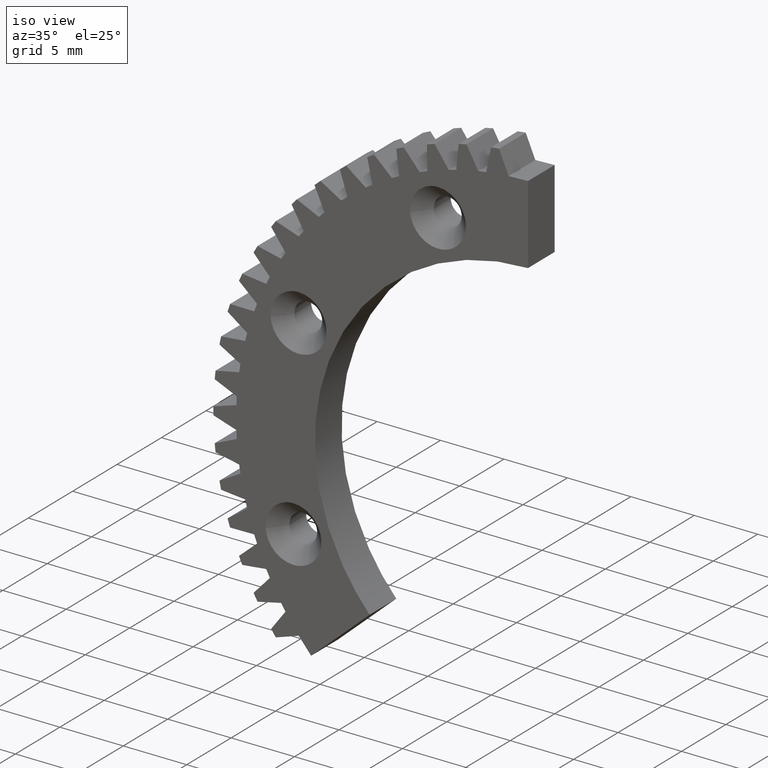
[diagram: clean part render]
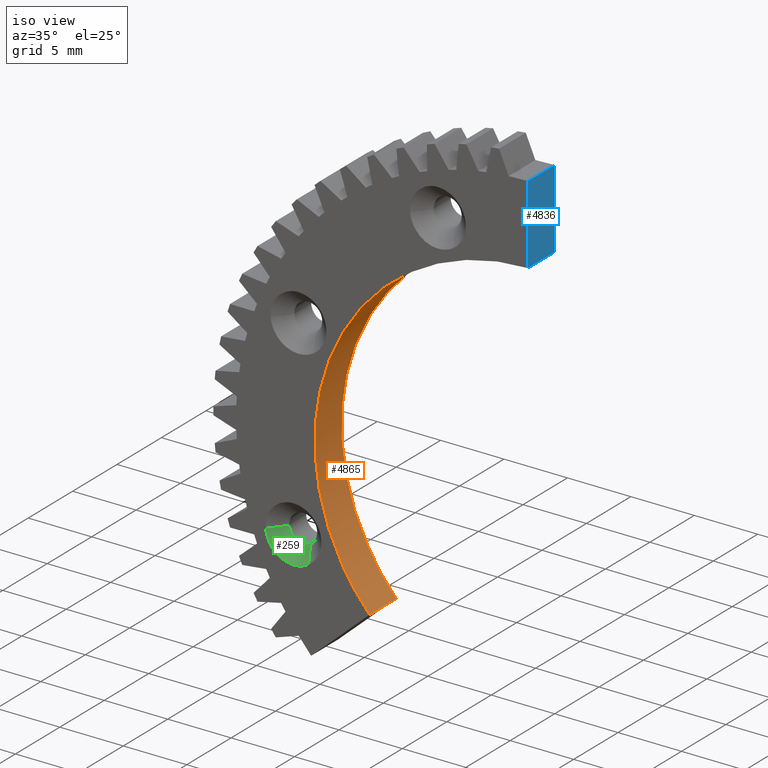
[diagram: same view with three faces highlighted in distinct colors, each labeled with its STEP entity id]
A machine part, iso view with three faces highlighted in distinct colors.
Their STEP definitions:

[orange] entity #4865 — the highlighted face is a freeform B-spline surface patch.
#1083=CARTESIAN_POINT('',(-12.484832521074720,0.0,-31.041392299796801));
#1084=VERTEX_POINT('',#1083);
#2029=CARTESIAN_POINT('',(-0.000000879645893,0.0,-3.0));
#2030=VERTEX_POINT('',#2029);
#2036=CARTESIAN_POINT('',(-0.000000879645893,0.0,-3.0));
#2037=CARTESIAN_POINT('',(-10.910047379083419,0.0,-3.000000571248718));
#2038=CARTESIAN_POINT('',(-15.347562894111640,0.0,-12.966824070928711));
#2039=CARTESIAN_POINT('',(-19.785078409139871,0.0,-22.933647570608706));
#2040=CARTESIAN_POINT('',(-12.484832521074710,0.0,-31.041392299796790));
#2048=(BOUNDED_CURVE()B_SPLINE_CURVE(2,(#2036,#2037,#2038,#2039,#2040),.UNSPECIFIED.,.F.,.U.)B_SPLINE_CURVE_WITH_KNOTS((3,2,3),(0.0,0.500000000000000,1.0),.UNSPECIFIED.)CURVE()GEOMETRIC_REPRESENTATION_ITEM()RATIONAL_B_SPLINE_CURVE((1.0,0.838670577451168,1.0,0.838670577451168,1.0))REPRESENTATION_ITEM(''));
#2049=EDGE_CURVE('',#2030,#1084,#2048,.T.);
#2079=CARTESIAN_POINT('',(-12.484832521074720,-3.0,-31.041392299796801));
#2080=VERTEX_POINT('',#2079);
#2086=CARTESIAN_POINT('',(-0.000000879645893,-3.0,-3.0));
#2087=VERTEX_POINT('',#2086);
#2088=CARTESIAN_POINT('',(-0.000000879645893,-3.0,-3.0));
#2089=CARTESIAN_POINT('',(-10.910047379083419,-3.000000000000000,-3.000000571248718));
#2090=CARTESIAN_POINT('',(-15.347562894111640,-3.0,-12.966824070928711));
#2091=CARTESIAN_POINT('',(-19.785078409139871,-3.000000000000000,-22.933647570608706));
#2092=CARTESIAN_POINT('',(-12.484832521074710,-3.0,-31.041392299796790));
#2100=(BOUNDED_CURVE()B_SPLINE_CURVE(2,(#2088,#2089,#2090,#2091,#2092),.UNSPECIFIED.,.F.,.U.)B_SPLINE_CURVE_WITH_KNOTS((3,2,3),(0.0,0.500000000000000,1.0),.UNSPECIFIED.)CURVE()GEOMETRIC_REPRESENTATION_ITEM()RATIONAL_B_SPLINE_CURVE((1.0,0.838670577451168,1.0,0.838670577451168,1.0))REPRESENTATION_ITEM(''));
#2101=EDGE_CURVE('',#2087,#2080,#2100,.T.);
#4829=CARTESIAN_POINT('',(-0.000000879645893,-3.0,-3.0));
#4830=CARTESIAN_POINT('',(-0.000000879645893,0.0,-3.0));
#4831=QUASI_UNIFORM_CURVE('',1,(#4829,#4830),.UNSPECIFIED.,.F.,.U.);
#4832=EDGE_CURVE('',#2087,#2030,#4831,.T.);
#4837=CARTESIAN_POINT('',(0.439772998510128,-3.075000000000001,-3.005756947743453));
#4838=CARTESIAN_POINT('',(0.439772998510128,0.076875000000000,-3.005756947743453));
#4839=CARTESIAN_POINT('',(-11.102589778152275,-3.075000000000000,-2.703509339760310));
#4840=CARTESIAN_POINT('',(-11.102589778152275,0.076875000000000,-2.703509339760310));
#4841=CARTESIAN_POINT('',(-15.521175110101440,-3.075000000000001,-13.370917448054330));
#4842=CARTESIAN_POINT('',(-15.521175110101440,0.076875000000000,-13.370917448054330));
#4843=CARTESIAN_POINT('',(-19.939760442050613,-3.075000000000000,-24.038325556348351));
#4844=CARTESIAN_POINT('',(-19.939760442050613,0.076875000000000,-24.038325556348351));
#4845=CARTESIAN_POINT('',(-11.564356395991330,-3.075000000000001,-31.986287505795971));
#4846=CARTESIAN_POINT('',(-11.564356395991330,0.076875000000000,-31.986287505795971));
#4854=(BOUNDED_SURFACE()B_SPLINE_SURFACE(1,2,((#4837,#4839,#4841,#4843,#4845),(#4838,#4840,#4842,#4844,#4846)),.UNSPECIFIED.,.F.,.F.,.U.)B_SPLINE_SURFACE_WITH_KNOTS((2,2),(3,2,3),(0.0,3.151875000000001),(0.0,20.866153390669229,41.732306781338451),.UNSPECIFIED.)GEOMETRIC_REPRESENTATION_ITEM()RATIONAL_B_SPLINE_SURFACE(((1.0,0.824126188622016,1.0,0.824126188622016,1.0),(1.0,0.824126188622016,1.0,0.824126188622016,1.0)))REPRESENTATION_ITEM('')SURFACE());
#4855=ORIENTED_EDGE('',*,*,#2049,.F.);
#4856=ORIENTED_EDGE('',*,*,#4832,.F.);
#4857=ORIENTED_EDGE('',*,*,#2101,.T.);
#4858=CARTESIAN_POINT('',(-12.484832521074720,-3.0,-31.041392299796801));
#4859=CARTESIAN_POINT('',(-12.484832521074720,0.0,-31.041392299796801));
#4860=QUASI_UNIFORM_CURVE('',1,(#4858,#4859),.UNSPECIFIED.,.F.,.U.);
#4861=EDGE_CURVE('',#2080,#1084,#4860,.T.);
#4862=ORIENTED_EDGE('',*,*,#4861,.T.);
#4863=EDGE_LOOP('',(#4855,#4856,#4857,#4862));
#4864=FACE_OUTER_BOUND('',#4863,.T.);
#4865=ADVANCED_FACE('',(#4864),#4854,.F.);

[blue] entity #4836 — the highlighted face is a freeform B-spline surface patch.
#2014=CARTESIAN_POINT('',(0.0,0.0,3.200000999999900));
#2015=VERTEX_POINT('',#2014);
#2029=CARTESIAN_POINT('',(-0.000000879645893,0.0,-3.0));
#2030=VERTEX_POINT('',#2029);
#2031=CARTESIAN_POINT('',(-0.000000879645893,0.0,-3.0));
#2032=CARTESIAN_POINT('',(0.0,0.0,3.200000999999900));
#2033=QUASI_UNIFORM_CURVE('',1,(#2031,#2032),.UNSPECIFIED.,.F.,.U.);
#2034=EDGE_CURVE('',#2030,#2015,#2033,.T.);
#2086=CARTESIAN_POINT('',(-0.000000879645893,-3.0,-3.0));
#2087=VERTEX_POINT('',#2086);
#2103=CARTESIAN_POINT('',(0.0,-3.0,3.200000999999900));
#2104=VERTEX_POINT('',#2103);
#2105=CARTESIAN_POINT('',(-0.000000879645893,-3.0,-3.0));
#2106=CARTESIAN_POINT('',(0.0,-3.0,3.200000999999900));
#2107=QUASI_UNIFORM_CURVE('',1,(#2105,#2106),.UNSPECIFIED.,.F.,.U.);
#2108=EDGE_CURVE('',#2087,#2104,#2107,.T.);
#4813=CARTESIAN_POINT('',(0.0,-3.0,3.200000999999900));
#4814=CARTESIAN_POINT('',(0.0,0.0,3.200000999999900));
#4815=QUASI_UNIFORM_CURVE('',1,(#4813,#4814),.UNSPECIFIED.,.F.,.U.);
#4816=EDGE_CURVE('',#2104,#2015,#4815,.T.);
#4821=CARTESIAN_POINT('',(0.0,-3.149849994185418,-3.309690037933190));
#4822=CARTESIAN_POINT('',(0.0,-3.149849994185418,3.509691204230076));
#4823=CARTESIAN_POINT('',(0.0,0.149850074651688,-3.309690037933190));
#4824=CARTESIAN_POINT('',(0.0,0.149850074651688,3.509691204230076));
#4825=B_SPLINE_SURFACE_WITH_KNOTS('',1,1,((#4821,#4823),(#4822,#4824)),.UNSPECIFIED.,.F.,.F.,.U.,(2,2),(2,2),(0.0,6.819381242163265),(0.0,3.299700068837106),.UNSPECIFIED.);
#4826=ORIENTED_EDGE('',*,*,#2034,.T.);
#4827=ORIENTED_EDGE('',*,*,#4816,.F.);
#4828=ORIENTED_EDGE('',*,*,#2108,.F.);
#4829=CARTESIAN_POINT('',(-0.000000879645893,-3.0,-3.0));
#4830=CARTESIAN_POINT('',(-0.000000879645893,0.0,-3.0));
#4831=QUASI_UNIFORM_CURVE('',1,(#4829,#4830),.UNSPECIFIED.,.F.,.U.);
#4832=EDGE_CURVE('',#2087,#2030,#4831,.T.);
#4833=ORIENTED_EDGE('',*,*,#4832,.T.);
#4834=EDGE_LOOP('',(#4826,#4827,#4828,#4833));
#4835=FACE_OUTER_BOUND('',#4834,.T.);
#4836=ADVANCED_FACE('',(#4835),#4825,.F.);

[green] entity #259 — the highlighted face is a freeform B-spline surface patch.
#68=CARTESIAN_POINT('',(-17.893179883235110,-1.900000000001235,-27.823091977637539));
#69=VERTEX_POINT('',#68);
#85=CARTESIAN_POINT('',(-17.301544010435251,-3.000000000001895,-28.750436031383401));
#86=VERTEX_POINT('',#85);
#87=CARTESIAN_POINT('',(-17.893179883235110,-1.900000000001235,-27.823091977637539));
#88=CARTESIAN_POINT('',(-17.301544010435251,-3.000000000001895,-28.750436031383401));
#89=QUASI_UNIFORM_CURVE('',1,(#87,#88),.UNSPECIFIED.,.F.,.U.);
#90=EDGE_CURVE('',#69,#86,#89,.T.);
#109=CARTESIAN_POINT('',(-20.678033890272040,-3.000000000029468,-27.068357934725690));
#110=VERTEX_POINT('',#109);
#126=CARTESIAN_POINT('',(-19.581424823175240,-1.900000000053336,-26.982052929606841));
#127=VERTEX_POINT('',#126);
#128=CARTESIAN_POINT('',(-19.581424823175240,-1.900000000053336,-26.982052929606841));
#129=CARTESIAN_POINT('',(-20.678033890272040,-3.000000000029468,-27.068357934725690));
#130=QUASI_UNIFORM_CURVE('',1,(#128,#129),.UNSPECIFIED.,.F.,.U.);
#131=EDGE_CURVE('',#127,#110,#130,.T.);
#181=CARTESIAN_POINT('',(-19.554009596476131,-1.872500000000000,-26.979895304067011));
#182=CARTESIAN_POINT('',(-19.469862216308012,-1.872499999999999,-28.049089144495788));
#183=CARTESIAN_POINT('',(-18.400668375879238,-1.872500000000000,-27.964941764327680));
#184=CARTESIAN_POINT('',(-18.133717207232511,-1.872500000000000,-27.943932251716351));
#185=CARTESIAN_POINT('',(-17.907970780076298,-1.872500000000000,-27.799908376305957));
#186=CARTESIAN_POINT('',(-20.706134497604840,-3.028187500000001,-27.070569500260991));
#187=CARTESIAN_POINT('',(-20.531312921242744,-3.028187500000001,-29.291888241818473));
#188=CARTESIAN_POINT('',(-18.309994179685258,-3.028187500000001,-29.117066665456392));
#189=CARTESIAN_POINT('',(-17.755386014567279,-3.028187500000000,-29.073418056242723));
#190=CARTESIAN_POINT('',(-17.286383341225427,-3.028187500000000,-28.774199222777938));
#198=(BOUNDED_SURFACE()B_SPLINE_SURFACE(2,1,((#181,#186),(#182,#187),(#183,#188),(#184,#189),(#185,#190)),.UNSPECIFIED.,.F.,.F.,.U.)B_SPLINE_SURFACE_WITH_KNOTS((3,2,3),(2,2),(0.0,3.691781928040812,4.873152145013872),(0.0,1.0),.UNSPECIFIED.)GEOMETRIC_REPRESENTATION_ITEM()RATIONAL_B_SPLINE_SURFACE(((1.0,1.0),(0.707106781186548,0.707106781186548),(1.0,1.0),(0.906274169979695,0.906274169979695),(0.872532871172386,0.872532871172386)))REPRESENTATION_ITEM('')SURFACE());
#199=CARTESIAN_POINT('',(-18.484815756047350,-1.900000000000000,-27.995747923898900));
#200=VERTEX_POINT('',#199);
#201=CARTESIAN_POINT('',(-17.893179883235113,-1.900000000001236,-27.823091977637542));
#202=CARTESIAN_POINT('',(-18.163804895103453,-1.900000000000000,-27.995747923898897));
#203=CARTESIAN_POINT('',(-18.484815756047350,-1.900000000000000,-27.995747923898900));
#211=(BOUNDED_CURVE()B_SPLINE_CURVE(2,(#201,#202,#203),.UNSPECIFIED.,.F.,.U.)B_SPLINE_CURVE_WITH_KNOTS((3,3),(0.407950112620737,0.500000000000000),.UNSPECIFIED.)CURVE()GEOMETRIC_REPRESENTATION_ITEM()RATIONAL_B_SPLINE_CURVE((0.863729296950716,0.892156848776287,1.0))REPRESENTATION_ITEM(''));
#212=EDGE_CURVE('',#69,#200,#211,.T.);
#213=ORIENTED_EDGE('',*,*,#212,.T.);
#214=CARTESIAN_POINT('',(-18.484815756047350,-1.900000000000000,-27.995747923898900));
#215=CARTESIAN_POINT('',(-19.501645296121477,-1.900000000000000,-27.995747923898904));
#216=CARTESIAN_POINT('',(-19.581424823175237,-1.900000000053336,-26.982052929606834));
#224=(BOUNDED_CURVE()B_SPLINE_CURVE(2,(#214,#215,#216),.UNSPECIFIED.,.F.,.U.)B_SPLINE_CURVE_WITH_KNOTS((3,3),(0.500000000000000,0.736331300506734),.UNSPECIFIED.)CURVE()GEOMETRIC_REPRESENTATION_ITEM()RATIONAL_B_SPLINE_CURVE((1.0,0.723120658752854,0.969723355908793))REPRESENTATION_ITEM(''));
#225=EDGE_CURVE('',#200,#127,#224,.T.);
#226=ORIENTED_EDGE('',*,*,#225,.T.);
#227=ORIENTED_EDGE('',*,*,#131,.T.);
#228=CARTESIAN_POINT('',(-18.484815756047350,-3.0,-29.095747923898902));
#229=VERTEX_POINT('',#228);
#230=CARTESIAN_POINT('',(-18.484815756047350,-3.0,-29.095747923898902));
#231=CARTESIAN_POINT('',(-20.518474837280163,-3.000000000000000,-29.095747923898902));
#232=CARTESIAN_POINT('',(-20.678033890272040,-3.000000000029467,-27.068357934725693));
#240=(BOUNDED_CURVE()B_SPLINE_CURVE(2,(#230,#231,#232),.UNSPECIFIED.,.F.,.U.)B_SPLINE_CURVE_WITH_KNOTS((3,3),(0.500000000000000,0.736331300597872),.UNSPECIFIED.)CURVE()GEOMETRIC_REPRESENTATION_ITEM()RATIONAL_B_SPLINE_CURVE((1.0,0.723120658646079,0.969723356098992))REPRESENTATION_ITEM(''));
#241=EDGE_CURVE('',#229,#110,#240,.T.);
#242=ORIENTED_EDGE('',*,*,#241,.F.);
#243=CARTESIAN_POINT('',(-17.301544010435251,-3.000000000001895,-28.750436031383398));
#244=CARTESIAN_POINT('',(-17.842794034175078,-3.0,-29.095747923898909));
#245=CARTESIAN_POINT('',(-18.484815756047350,-3.0,-29.095747923898902));
#253=(BOUNDED_CURVE()B_SPLINE_CURVE(2,(#243,#244,#245),.UNSPECIFIED.,.F.,.U.)B_SPLINE_CURVE_WITH_KNOTS((3,3),(0.407950112622724,0.500000000000000),.UNSPECIFIED.)CURVE()GEOMETRIC_REPRESENTATION_ITEM()RATIONAL_B_SPLINE_CURVE((0.863729296951943,0.892156848778615,1.0))REPRESENTATION_ITEM(''));
#254=EDGE_CURVE('',#86,#229,#253,.T.);
#255=ORIENTED_EDGE('',*,*,#254,.F.);
#256=ORIENTED_EDGE('',*,*,#90,.F.);
#257=EDGE_LOOP('',(#213,#226,#227,#242,#255,#256));
#258=FACE_OUTER_BOUND('',#257,.T.);
#259=ADVANCED_FACE('',(#258),#198,.F.);